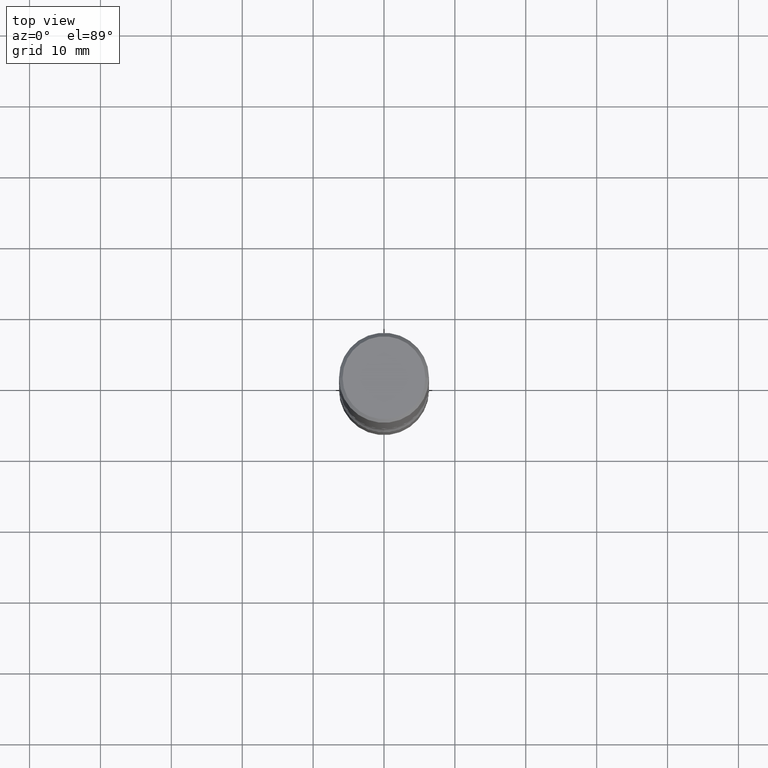
[diagram: clean part render]
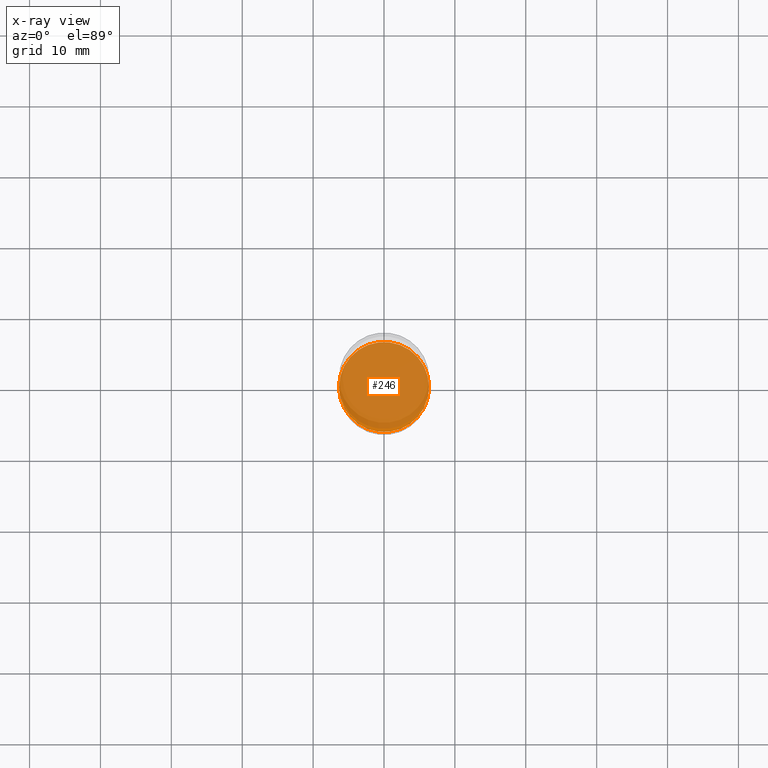
[diagram: x-ray — body ghosted, one internal face saturated and labeled with its STEP entity id]
A machine part, top view, then the same camera in x-ray: the body is ghosted and one INTERNAL B-rep face — a face not visible from any outside direction — is saturated and labeled: STEP entity #246.
In plain terms, the highlighted planar face has unit normal (0, -0, -1).
Its self-contained STEP definition (entity closure, byte-faithful):
#18 = AXIS2_PLACEMENT_3D ( 'NONE', #482, #514, #545 ) ;
#34 = CIRCLE ( 'NONE', #549, 0.2500000000000002776 ) ;
#36 = EDGE_CURVE ( 'NONE', #82, #128, #389, .T. ) ;
#49 = DIRECTION ( 'NONE',  ( 1.000000000000000000, -6.982962677686270655E-15, 0.000000000000000000 ) ) ;
#51 = PLANE ( 'NONE',  #18 ) ;
#68 = DIRECTION ( 'NONE',  ( -2.445468806185136597E-29, 3.491481338843145583E-15, 1.000000000000000000 ) ) ;
#81 = ORIENTED_EDGE ( 'NONE', *, *, #280, .T. ) ;
#82 = VERTEX_POINT ( 'NONE', #154 ) ;
#128 = VERTEX_POINT ( 'NONE', #221 ) ;
#148 = CARTESIAN_POINT ( 'NONE',  ( 7.336406418555409790E-29, -1.047444401652943635E-14, -3.000000000000000444 ) ) ;
#154 = CARTESIAN_POINT ( 'NONE',  ( 0.2500000000000002776, -1.222018468595100619E-14, -3.000000000000000444 ) ) ;
#178 = FACE_OUTER_BOUND ( 'NONE', #182, .T. ) ;
#182 = EDGE_LOOP ( 'NONE', ( #250, #81 ) ) ;
#221 = CARTESIAN_POINT ( 'NONE',  ( -0.2500000000000002776, -1.033908340638546235E-14, -3.000000000000000444 ) ) ;
#246 = ADVANCED_FACE ( 'NONE', ( #178 ), #51, .F. ) ;
#250 = ORIENTED_EDGE ( 'NONE', *, *, #36, .T. ) ;
#269 = CARTESIAN_POINT ( 'NONE',  ( 7.336406418555409790E-29, -1.047444401652943635E-14, -3.000000000000000444 ) ) ;
#274 = AXIS2_PLACEMENT_3D ( 'NONE', #269, #357, #49 ) ;
#280 = EDGE_CURVE ( 'NONE', #128, #82, #34, .T. ) ;
#357 = DIRECTION ( 'NONE',  ( -2.445468806185136597E-29, 3.491481338843145583E-15, 1.000000000000000000 ) ) ;
#389 = CIRCLE ( 'NONE', #274, 0.2500000000000002776 ) ;
#456 = DIRECTION ( 'NONE',  ( 1.000000000000000000, -6.982962677686270655E-15, 0.000000000000000000 ) ) ;
#482 = CARTESIAN_POINT ( 'NONE',  ( 7.336406418555409790E-29, -1.047444401652943635E-14, -3.000000000000000444 ) ) ;
#514 = DIRECTION ( 'NONE',  ( 2.438088387897960049E-29, -3.491481338843145188E-15, -1.000000000000000000 ) ) ;
#545 = DIRECTION ( 'NONE',  ( -1.000000000000000000, 6.982962677686265922E-15, -4.876176775795935793E-29 ) ) ;
#549 = AXIS2_PLACEMENT_3D ( 'NONE', #148, #68, #456 ) ;